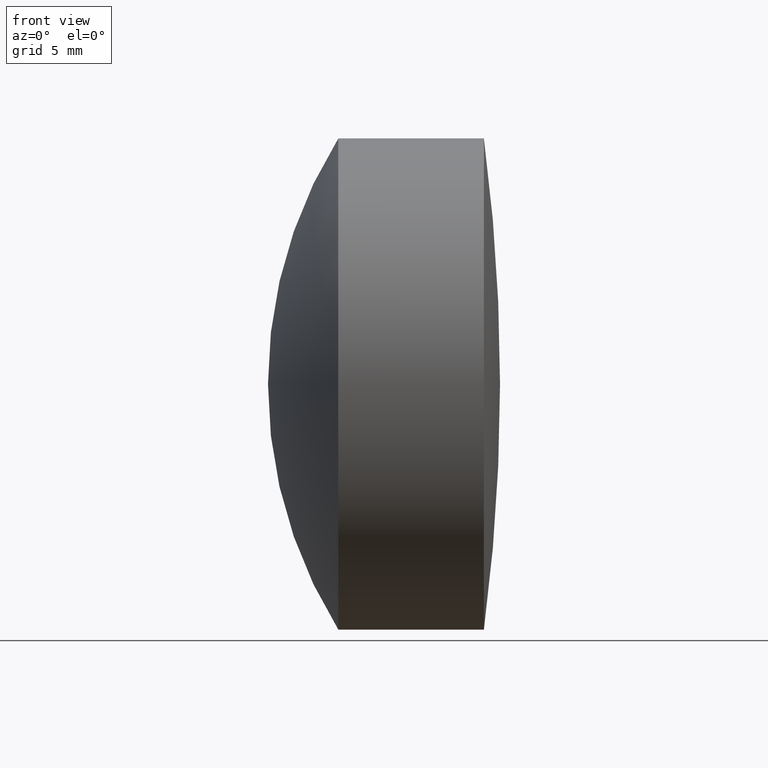
[diagram: clean part render]
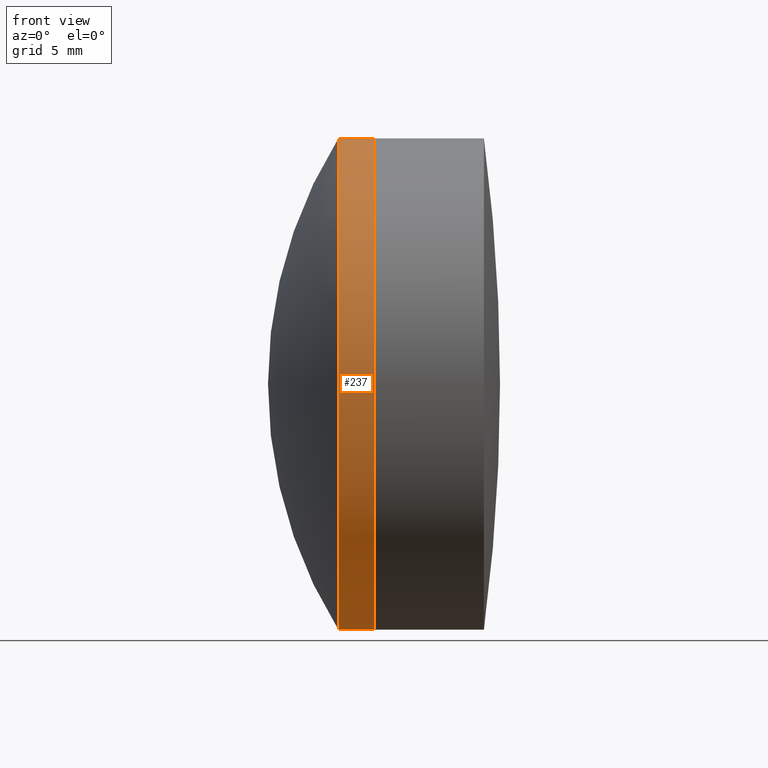
[diagram: same view with one face highlighted and labeled with its STEP entity id]
A machine part, front view. The second image highlights one B-rep face of the part: STEP entity #237.
In plain terms, the highlighted cylindrical surface (partial cylindrical patch) has radius 12.7 mm, axis along (-1, -0, -0).
Its self-contained STEP definition (entity closure, byte-faithful):
#3 = EDGE_CURVE ( 'NONE', #190, #42, #59, .T. ) ;
#5 = AXIS2_PLACEMENT_3D ( 'NONE', #60, #261, #259 ) ;
#10 = LINE ( 'NONE', #207, #269 ) ;
#19 = ORIENTED_EDGE ( 'NONE', *, *, #178, .F. ) ;
#41 = LINE ( 'NONE', #91, #118 ) ;
#42 = VERTEX_POINT ( 'NONE', #95 ) ;
#43 = DIRECTION ( 'NONE',  ( -1.000000000000000000, -0.0000000000000000000, -0.0000000000000000000 ) ) ;
#44 = DIRECTION ( 'NONE',  ( 0.0000000000000000000, 0.0000000000000000000, 1.000000000000000000 ) ) ;
#59 = CIRCLE ( 'NONE', #5, 12.70000000000000600 ) ;
#60 = CARTESIAN_POINT ( 'NONE',  ( 278.0956821889693100, 0.0000000000000000000, 0.0000000000000000000 ) ) ;
#66 = CARTESIAN_POINT ( 'NONE',  ( 124.5233095260452400, 0.0000000000000000000, 0.0000000000000000000 ) ) ;
#72 = CARTESIAN_POINT ( 'NONE',  ( 276.2363429916271700, 0.0000000000000000000, -12.69999999999999900 ) ) ;
#91 = CARTESIAN_POINT ( 'NONE',  ( 124.5233095260452400, 0.0000000000000000000, 12.70000000000000600 ) ) ;
#95 = CARTESIAN_POINT ( 'NONE',  ( 278.0956821889693100, 0.0000000000000000000, 12.70000000000000600 ) ) ;
#118 = VECTOR ( 'NONE', #149, 1000.000000000000000 ) ;
#123 = EDGE_CURVE ( 'NONE', #42, #267, #41, .T. ) ;
#137 = AXIS2_PLACEMENT_3D ( 'NONE', #66, #209, #44 ) ;
#145 = EDGE_CURVE ( 'NONE', #278, #267, #176, .T. ) ;
#149 = DIRECTION ( 'NONE',  ( -1.000000000000000000, -0.0000000000000000000, -0.0000000000000000000 ) ) ;
#151 = ORIENTED_EDGE ( 'NONE', *, *, #145, .F. ) ;
#155 = EDGE_LOOP ( 'NONE', ( #19, #199, #320, #151 ) ) ;
#160 = DIRECTION ( 'NONE',  ( -1.000000000000000000, -0.0000000000000000000, -0.0000000000000000000 ) ) ;
#176 = CIRCLE ( 'NONE', #323, 12.70000000000000600 ) ;
#177 = CARTESIAN_POINT ( 'NONE',  ( 278.0956821889693100, 1.555301434917139200E-015, -12.70000000000000600 ) ) ;
#178 = EDGE_CURVE ( 'NONE', #190, #278, #10, .T. ) ;
#190 = VERTEX_POINT ( 'NONE', #177 ) ;
#199 = ORIENTED_EDGE ( 'NONE', *, *, #3, .T. ) ;
#207 = CARTESIAN_POINT ( 'NONE',  ( 124.5233095260452400, 1.555301434917139200E-015, -12.70000000000000600 ) ) ;
#209 = DIRECTION ( 'NONE',  ( -1.000000000000000000, -0.0000000000000000000, -0.0000000000000000000 ) ) ;
#230 = DIRECTION ( 'NONE',  ( 0.0000000000000000000, 0.0000000000000000000, 1.000000000000000000 ) ) ;
#237 = ADVANCED_FACE ( 'NONE', ( #334 ), #273, .T. ) ;
#259 = DIRECTION ( 'NONE',  ( 0.0000000000000000000, 0.0000000000000000000, 1.000000000000000000 ) ) ;
#261 = DIRECTION ( 'NONE',  ( -1.000000000000000000, -0.0000000000000000000, -0.0000000000000000000 ) ) ;
#267 = VERTEX_POINT ( 'NONE', #275 ) ;
#269 = VECTOR ( 'NONE', #43, 1000.000000000000000 ) ;
#273 = CYLINDRICAL_SURFACE ( 'NONE', #137, 12.70000000000000600 ) ;
#275 = CARTESIAN_POINT ( 'NONE',  ( 276.2363429916271700, -1.555301434917138400E-015, 12.70000000000000600 ) ) ;
#278 = VERTEX_POINT ( 'NONE', #72 ) ;
#320 = ORIENTED_EDGE ( 'NONE', *, *, #123, .T. ) ;
#323 = AXIS2_PLACEMENT_3D ( 'NONE', #342, #160, #230 ) ;
#334 = FACE_OUTER_BOUND ( 'NONE', #155, .T. ) ;
#342 = CARTESIAN_POINT ( 'NONE',  ( 276.2363429916271700, 0.0000000000000000000, 0.0000000000000000000 ) ) ;